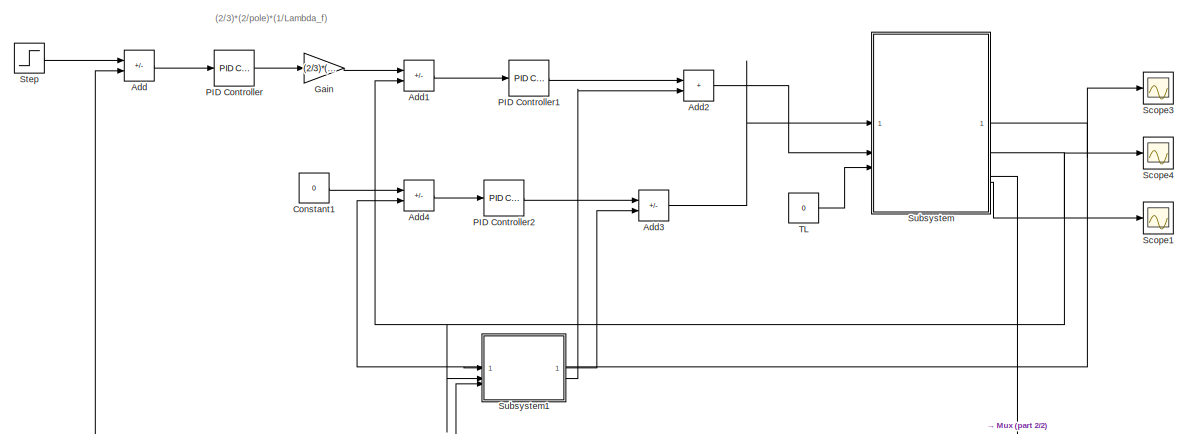
[diagram: root canvas - part 1/2, full width, top band]
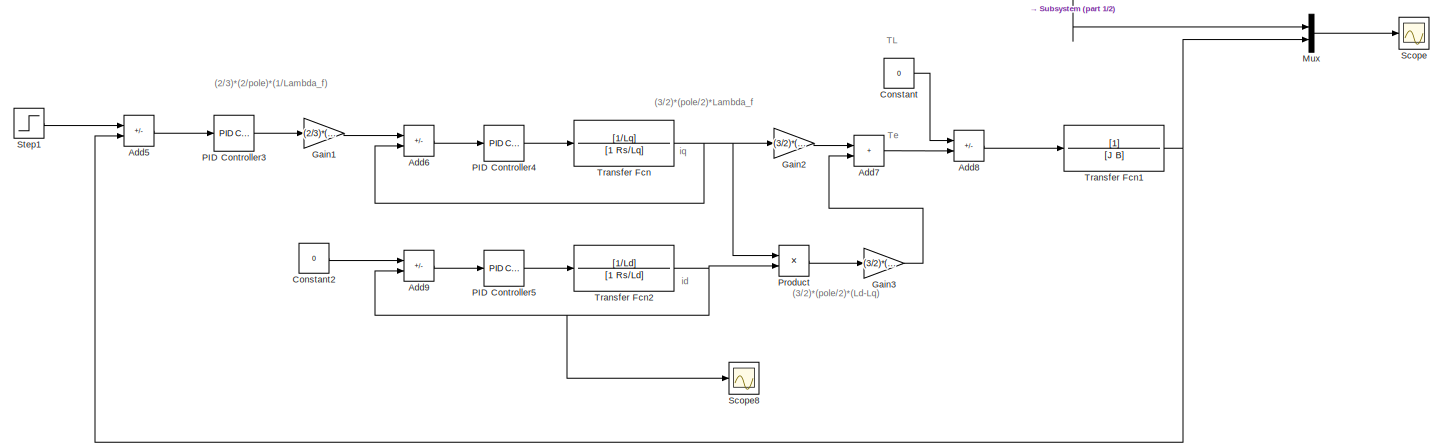
[diagram: root canvas - part 2/2, full width, bottom band]
MODEL slx_75fbed19556d
KIND model
CONFIG AbsTol = auto
CONFIG EnableMultiTasking = off
CONFIG FixedStep = auto
CONFIG MaxStep = auto
CONFIG MinStep = auto
CONFIG RelTol = 1e-3
CONFIG SampleTimeConstraint = Unconstrained
CONFIG SolverName = VariableStepAuto
CONFIG StartTime = 0.0
CONFIG StopTime = 10.0
BLOCK [Sum] Add
  IconShape = rectangular
  Inputs = +-
BLOCK [Sum] Add1
  IconShape = rectangular
  Inputs = +-
BLOCK [Sum] Add2
  IconShape = rectangular
BLOCK [Sum] Add3
  IconShape = rectangular
  Inputs = +-
BLOCK [Sum] Add4
  IconShape = rectangular
  Inputs = +-
BLOCK [Sum] Add5
  IconShape = rectangular
  Inputs = +-
BLOCK [Sum] Add6
  IconShape = rectangular
  Inputs = +-
BLOCK [Sum] Add7
  IconShape = rectangular
BLOCK [Sum] Add8
  IconShape = rectangular
  Inputs = -+
BLOCK [Sum] Add9
  IconShape = rectangular
  Inputs = +-
BLOCK [Constant] Constant
  Value = 0
BLOCK [Constant] Constant1
  Value = 0
BLOCK [Constant] Constant2
  Value = 0
BLOCK [Gain] Gain
  Gain = (2/3)*(2/pole)*(1/Lambda_f)
BLOCK [Gain] Gain1
  Gain = (2/3)*(2/pole)*(1/Lambda_f)
BLOCK [Gain] Gain2
  Gain = (3/2)*(pole/2)*Lambda_f
BLOCK [Gain] Gain3
  Gain = (3/2)*(pole/2)*(Ld-Lq)
BLOCK [Mux] Mux
  DisplayOption = bar
  Inputs = 2
BLOCK [Reference] PID Controller  REF=slpidlib/PID Controller
  LibrarySourceBlock = simulink/Continuous/PID Controller
  SourceBlock = slpidlib/PID Controller
  SourceType = PID 1dof
BLOCK [Reference] PID Controller1  REF=slpidlib/PID Controller
  LibrarySourceBlock = simulink/Continuous/PID Controller
  SourceBlock = slpidlib/PID Controller
  SourceType = PID 1dof
BLOCK [Reference] PID Controller2  REF=slpidlib/PID Controller
  LibrarySourceBlock = simulink/Continuous/PID Controller
  SourceBlock = slpidlib/PID Controller
  SourceType = PID 1dof
BLOCK [Reference] PID Controller3  REF=slpidlib/PID Controller
  LibrarySourceBlock = simulink/Continuous/PID Controller
  SourceBlock = slpidlib/PID Controller
  SourceType = PID 1dof
BLOCK [Reference] PID Controller4  REF=slpidlib/PID Controller
  LibrarySourceBlock = simulink/Continuous/PID Controller
  SourceBlock = slpidlib/PID Controller
  SourceType = PID 1dof
BLOCK [Reference] PID Controller5  REF=slpidlib/PID Controller
  LibrarySourceBlock = simulink/Continuous/PID Controller
  SourceBlock = slpidlib/PID Controller
  SourceType = PID 1dof
BLOCK [Product] Product
BLOCK [Scope] Scope
  Floating = off
  NumInputPorts = 1
  ScopeSpecificationString = Simulink.scopes.TimeScopeBlockCfg('CurrentConfiguration', extmgr.ConfigurationSet(extmgr.Configuration('Core','General UI',true),extmgr.Configuration('Core','Source UI',true),extmgr.Configuration('Sources','WiredSimulink',true,'DataLoggingVariableName','ScopeData1'),extmgr.Configuration('Visuals','Time Domain',true,'SerializedDisplays',{struct('MinYLimReal','-82.73008','MaxYLimReal','120.30619','Y...<+1396ch>
BLOCK [Scope] Scope1
  Floating = off
  NumInputPorts = 1
  ScopeSpecificationString = Simulink.scopes.TimeScopeBlockCfg('CurrentConfiguration', extmgr.ConfigurationSet(extmgr.Configuration('Core','General UI',true),extmgr.Configuration('Core','Source UI',true),extmgr.Configuration('Sources','WiredSimulink',true,'DataLoggingVariableName','ScopeData1'),extmgr.Configuration('Visuals','Time Domain',true,'SerializedDisplays',{struct('MinYLimReal','-7132.19763','MaxYLimReal','7134.01115'...<+1491ch>
BLOCK [Scope] Scope3
  Floating = off
  NumInputPorts = 1
  ScopeSpecificationString = Simulink.scopes.TimeScopeBlockCfg('CurrentConfiguration', extmgr.ConfigurationSet(extmgr.Configuration('Core','General UI',true),extmgr.Configuration('Core','Source UI',true),extmgr.Configuration('Sources','WiredSimulink',true,'DataLoggingVariableName','ScopeData2'),extmgr.Configuration('Visuals','Time Domain',true,'SerializedDisplays',{struct('MinYLimReal','-7132.19763','MaxYLimReal','7134.01115'...<+1491ch>
BLOCK [Scope] Scope4
  Floating = off
  NumInputPorts = 1
  ScopeSpecificationString = Simulink.scopes.TimeScopeBlockCfg('CurrentConfiguration', extmgr.ConfigurationSet(extmgr.Configuration('Core','General UI',true),extmgr.Configuration('Core','Source UI',true),extmgr.Configuration('Sources','WiredSimulink',true,'DataLoggingVariableName','ScopeData3'),extmgr.Configuration('Visuals','Time Domain',true,'SerializedDisplays',{struct('MinYLimReal','-1.85156','MaxYLimReal','16.55403','YLa...<+1473ch>
BLOCK [Scope] Scope8
  Floating = off
  NumInputPorts = 1
  ScopeSpecificationString = Simulink.scopes.TimeScopeBlockCfg('CurrentConfiguration', extmgr.ConfigurationSet(extmgr.Configuration('Core','General UI',true),extmgr.Configuration('Core','Source UI',true),extmgr.Configuration('Sources','WiredSimulink',true,'DataLoggingVariableName','ScopeData3'),extmgr.Configuration('Visuals','Time Domain',true,'SerializedDisplays',{struct('MinYLimReal','-1.00000','MaxYLimReal','1.00000','YLab...<+1372ch>
BLOCK [Step] Step
  After = 100
  SampleTime = 0
BLOCK [Step] Step1
  After = 100
  SampleTime = 0
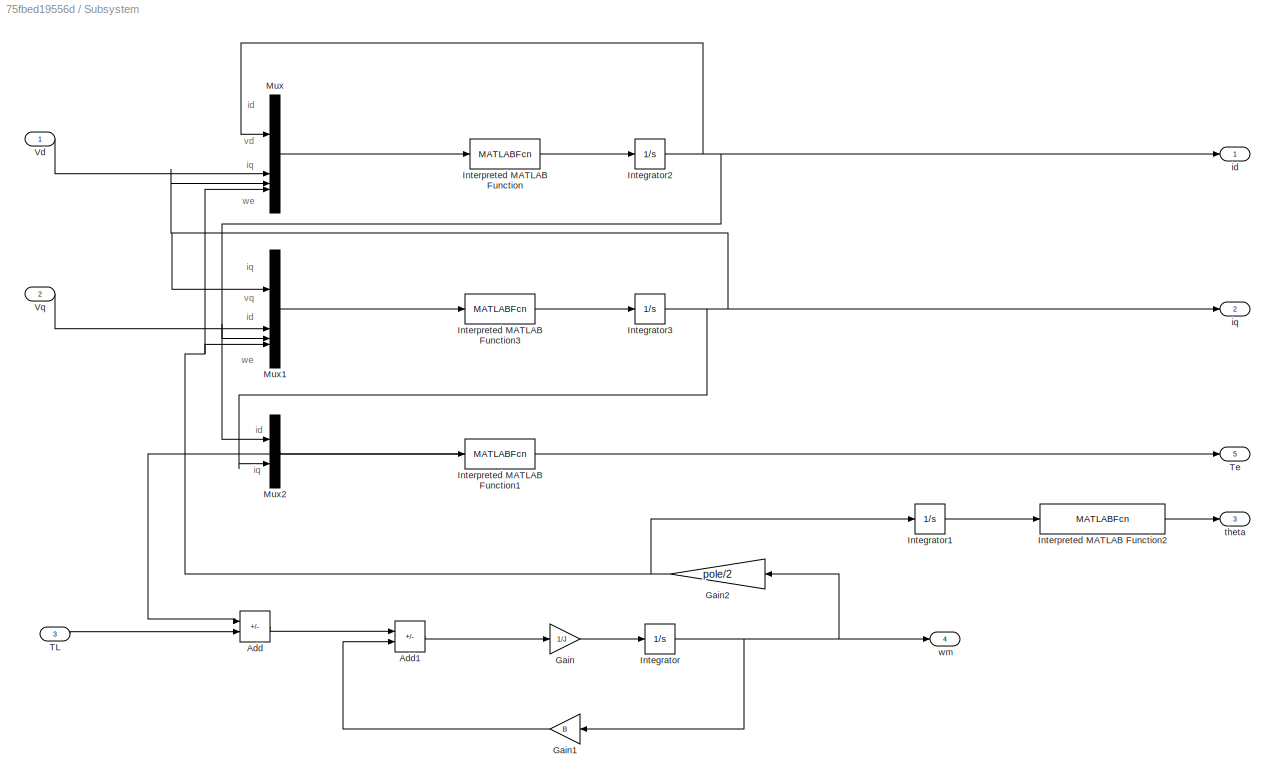
BLOCK [SubSystem] Subsystem
BLOCK [Sum] Subsystem/Add
  IconShape = rectangular
  Inputs = +-
BLOCK [Sum] Subsystem/Add1
  IconShape = rectangular
  Inputs = +-
BLOCK [Gain] Subsystem/Gain
  Gain = 1/J
BLOCK [Gain] Subsystem/Gain1
  Gain = B
  NameLocation = top
BLOCK [Gain] Subsystem/Gain2
  Gain = pole/2
  NameLocation = top
BLOCK [Integrator] Subsystem/Integrator
BLOCK [Integrator] Subsystem/Integrator1
BLOCK [Integrator] Subsystem/Integrator2
BLOCK [Integrator] Subsystem/Integrator3
BLOCK [MATLABFcn] Subsystem/Interpreted MATLAB Function
  MATLABFcn = -(Rs/Ld)*u(1) + (Lq/Ld)*u(3)*u(4) + u(2)/Ld
BLOCK [MATLABFcn] Subsystem/Interpreted MATLAB Function1
  MATLABFcn = 3/2*(pole/2)*(Lambda_f*u(2) + (Ld-Lq)*u(1)*u(2))
BLOCK [MATLABFcn] Subsystem/Interpreted MATLAB Function2
  MATLABFcn = mod(u,2*pi)
BLOCK [MATLABFcn] Subsystem/Interpreted MATLAB Function3
  MATLABFcn = -(Rs/Lq)*u(1) - (Ld/Lq)*u(3)*u(4) - (Lambda_f/Lq)*u(4) + u(2)/Lq
BLOCK [Mux] Subsystem/Mux
  DisplayOption = bar
BLOCK [Mux] Subsystem/Mux1
  DisplayOption = bar
BLOCK [Mux] Subsystem/Mux2
  DisplayOption = bar
  Inputs = 2
BLOCK [Inport] Subsystem/TL
  Port = 3
BLOCK [Outport] Subsystem/Te
  Port = 5
BLOCK [Inport] Subsystem/Vd
BLOCK [Inport] Subsystem/Vq
  Port = 2
BLOCK [Outport] Subsystem/id
BLOCK [Outport] Subsystem/iq
  Port = 2
BLOCK [Outport] Subsystem/theta
  Port = 3
BLOCK [Outport] Subsystem/wm
  Port = 4
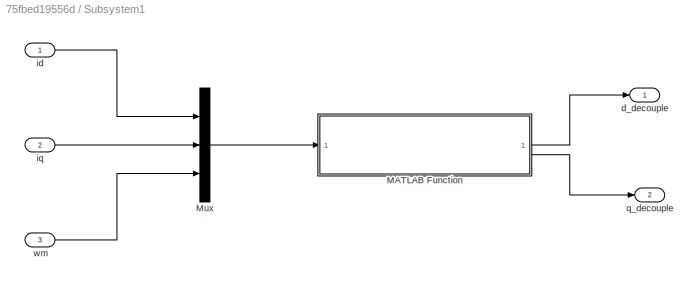
BLOCK [SubSystem] Subsystem1
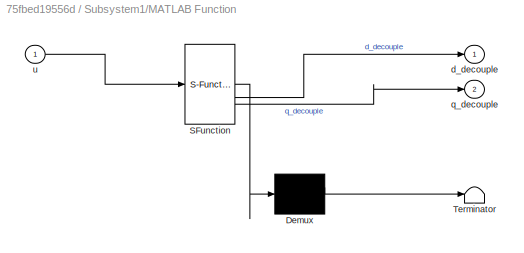
BLOCK [SubSystem] Subsystem1/MATLAB Function
  ErrorFcn = Stateflow.Translate.translate
  PermitHierarchicalResolution = ExplicitOnly
  SFBlockType = MATLAB Function
  TreatAsAtomicUnit = on
BLOCK [Demux] Subsystem1/MATLAB Function/ Demux 
  Outputs = 1
BLOCK [S-Function] Subsystem1/MATLAB Function/ SFunction 
  EnableBusSupport = on
  FunctionName = sf_sfun
  PortCounts = [1 3]
  SFcnIsStateOwnerBlock = off
  SFunctionDeploymentMode = off
  Tag = Stateflow S-Function 2
BLOCK [Terminator] Subsystem1/MATLAB Function/ Terminator 
BLOCK [Outport] Subsystem1/MATLAB Function/d_decouple
BLOCK [Outport] Subsystem1/MATLAB Function/q_decouple
  Port = 2
BLOCK [Inport] Subsystem1/MATLAB Function/u
BLOCK [Mux] Subsystem1/Mux
  DisplayOption = bar
  Inputs = 3
BLOCK [Outport] Subsystem1/d_decouple
BLOCK [Inport] Subsystem1/id
BLOCK [Inport] Subsystem1/iq
  Port = 2
BLOCK [Outport] Subsystem1/q_decouple
  Port = 2
BLOCK [Inport] Subsystem1/wm
  Port = 3
BLOCK [Constant] TL
  Value = 0
BLOCK [TransferFcn] Transfer Fcn
  Denominator = [1 Rs/Lq]
  Numerator = [1/Lq]
BLOCK [TransferFcn] Transfer Fcn1
  Denominator = [J B]
BLOCK [TransferFcn] Transfer Fcn2
  Denominator = [1 Rs/Ld]
  Numerator = [1/Ld]
ANNOTATION (root): (2/3)*(2/pole)*(1/Lambda_f)
ANNOTATION (root): (3/2)*(pole/2)*(Ld-Lq)
ANNOTATION (root): (3/2)*(pole/2)*Lambda_f
ANNOTATION (root): TL
ANNOTATION (root): Te
ANNOTATION (root): id
ANNOTATION (root): iq
ANNOTATION Subsystem: id
ANNOTATION Subsystem: iq
ANNOTATION Subsystem: vd
ANNOTATION Subsystem: vq
ANNOTATION Subsystem: we
LINE Add1:1 -> PID Controller1:1
LINE Add2:1 -> Subsystem:2
LINE Add3:1 -> Subsystem:1
LINE Add4:1 -> PID Controller2:1
LINE Add5:1 -> PID Controller3:1
LINE Add6:1 -> PID Controller4:1
LINE Add7:1 -> Add8:2
LINE Add8:1 -> Transfer Fcn1:1
LINE Add9:1 -> PID Controller5:1
LINE Add:1 -> PID Controller:1
LINE Constant1:1 -> Add4:1
LINE Constant2:1 -> Add9:1
LINE Constant:1 -> Add8:1
LINE Gain1:1 -> Add6:1
LINE Gain2:1 -> Add7:1
LINE Gain3:1 -> Add7:2
LINE Gain:1 -> Add1:1
LINE Mux:1 -> Scope:1
LINE PID Controller1:1 -> Add2:1
LINE PID Controller2:1 -> Add3:1
LINE PID Controller3:1 -> Gain1:1
LINE PID Controller4:1 -> Transfer Fcn:1
LINE PID Controller5:1 -> Transfer Fcn2:1
LINE PID Controller:1 -> Gain:1
LINE Product:1 -> Gain3:1
LINE Step1:1 -> Add5:1
LINE Step:1 -> Add:1
LINE Subsystem/Add1:1 -> Subsystem/Gain:1
LINE Subsystem/Add:1 -> Subsystem/Add1:1
LINE Subsystem/Gain1:1 -> Subsystem/Add1:2
NET Subsystem/Gain2:1 -> Subsystem/Integrator1:1, Subsystem/Mux1:4, Subsystem/Mux:4
LINE Subsystem/Gain:1 -> Subsystem/Integrator:1
LINE Subsystem/Integrator1:1 -> Subsystem/Interpreted MATLAB Function2:1
NET Subsystem/Integrator2:1 -> Subsystem/Mux1:3, Subsystem/Mux2:1, Subsystem/Mux:1, Subsystem/id:1
NET Subsystem/Integrator3:1 -> Subsystem/Mux1:1, Subsystem/Mux2:2, Subsystem/Mux:3, Subsystem/iq:1
NET Subsystem/Integrator:1 -> Subsystem/Gain1:1, Subsystem/Gain2:1, Subsystem/wm:1
NET Subsystem/Interpreted MATLAB Function1:1 -> Subsystem/Add:1, Subsystem/Te:1
LINE Subsystem/Interpreted MATLAB Function2:1 -> Subsystem/theta:1
LINE Subsystem/Interpreted MATLAB Function3:1 -> Subsystem/Integrator3:1
LINE Subsystem/Interpreted MATLAB Function:1 -> Subsystem/Integrator2:1
LINE Subsystem/Mux1:1 -> Subsystem/Interpreted MATLAB Function3:1
LINE Subsystem/Mux2:1 -> Subsystem/Interpreted MATLAB Function1:1
LINE Subsystem/Mux:1 -> Subsystem/Interpreted MATLAB Function:1
LINE Subsystem/TL:1 -> Subsystem/Add:2
LINE Subsystem/Vd:1 -> Subsystem/Mux:2
LINE Subsystem/Vq:1 -> Subsystem/Mux1:2
LINE Subsystem1/MATLAB Function:1 -> Subsystem1/d_decouple:1
LINE Subsystem1/MATLAB Function:2 -> Subsystem1/q_decouple:1
LINE Subsystem1/Mux:1 -> Subsystem1/MATLAB Function:1
LINE Subsystem1/id:1 -> Subsystem1/Mux:1
LINE Subsystem1/iq:1 -> Subsystem1/Mux:2
LINE Subsystem1/wm:1 -> Subsystem1/Mux:3
LINE Subsystem1:1 -> Add3:2
LINE Subsystem1:2 -> Add2:2
NET Subsystem:1 -> Add4:2, Scope3:1, Subsystem1:1
NET Subsystem:2 -> Add1:2, Scope4:1, Subsystem1:2
NET Subsystem:4 -> Add:2, Mux:1, Subsystem1:3
LINE Subsystem:5 -> Scope1:1
LINE TL:1 -> Subsystem:3
NET Transfer Fcn1:1 -> Add5:2, Mux:2
NET Transfer Fcn2:1 -> Add9:2, Product:2, Scope8:1
NET Transfer Fcn:1 -> Add6:2, Gain2:1, Product:1
note: NET lines group one-source signal fan-out (src -> all destinations, sorted); 1:1 wires keep LINE
CHART Subsystem1/MATLAB Function states=1 transitions=1
  STATE_LABEL 'eML_blk_kernel()'
  STATE_LABEL 'SCRIPT:\nfunction [d_decouple, q_decouple] = decouple(u)\n    \n    % 电机参数\n    Ld = 0.0057;\n    Lq = 0.0125;\n    Lambda_f = 0.03;\n    pole = 4;\n\n    we = u(3)*pole/2;\n\n    % 前馈补偿\n    d_decouple = Ld*(we*(Lq/Ld)*u(2));\n    q_decouple = Lq*(we*(Ld*u(1)+ Lambda_f)/Lq);\n\nend\n\n'
CHART  states=0 transitions=0
